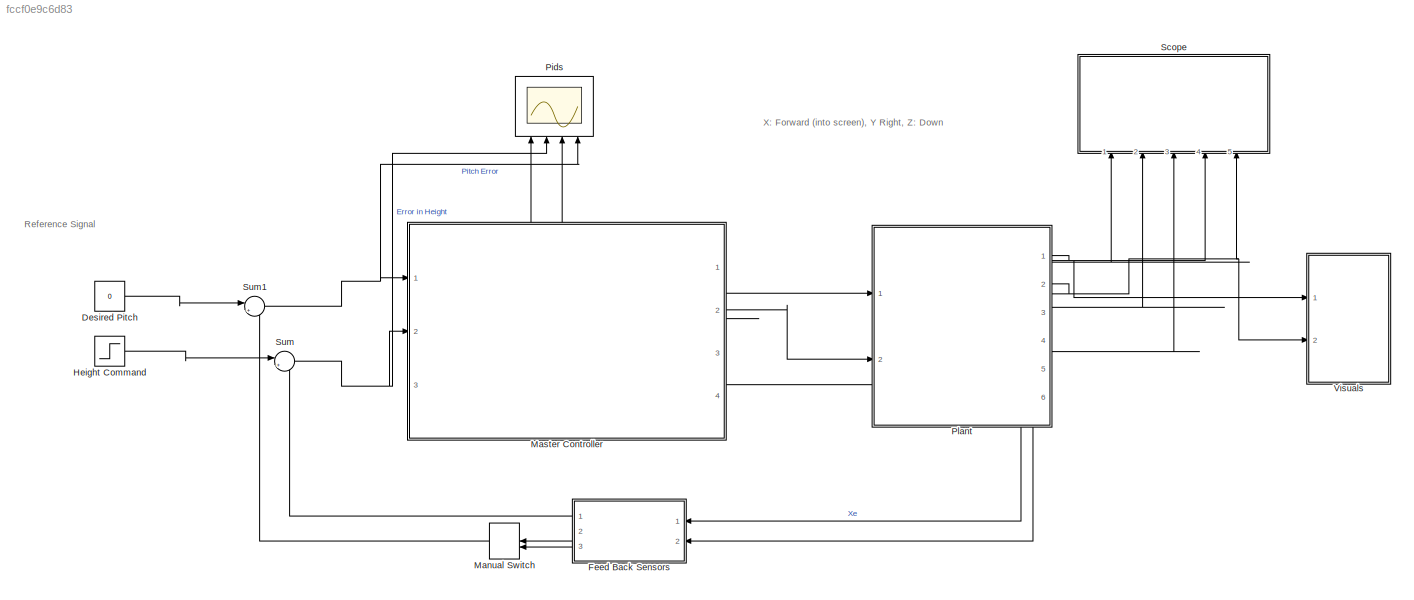
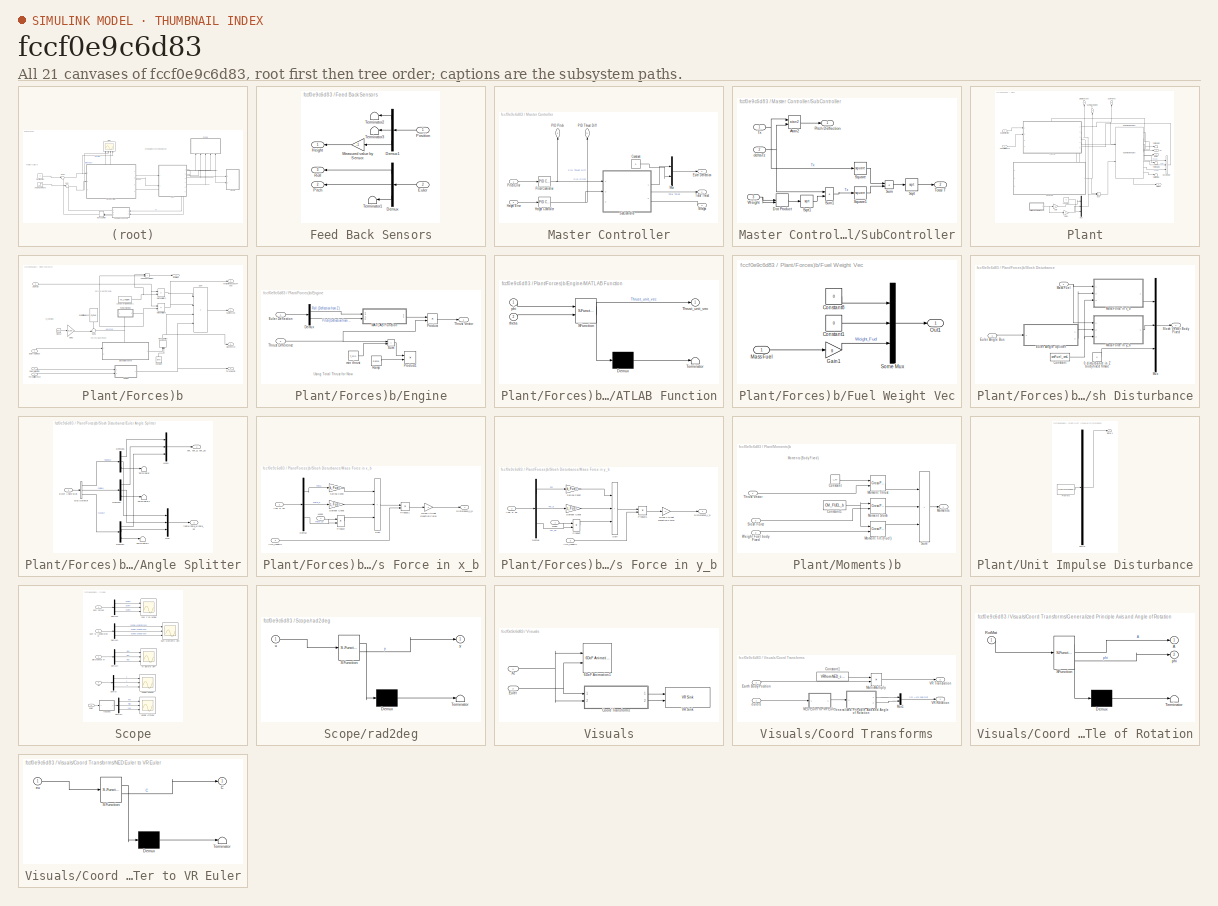
[diagram: thumbnail index - all 21 canvases of the model, root first then tree order]
MODEL slx_fccf0e9c6d83
KIND model
CONFIG AbsTol = auto
CONFIG EnableMultiTasking = off
CONFIG FixedStep = auto
CONFIG MaxStep = auto
CONFIG MinStep = auto
CONFIG RelTol = 1e-3
CONFIG SampleTimeConstraint = Unconstrained
CONFIG SolverName = VariableStepAuto
CONFIG StartTime = 0.0
CONFIG StopTime = 10
BLOCK [Constant] Desired Pitch
  Value = 0
BLOCK [SubSystem] Feed Back Sensors
  NameLocation = top
  Ports = [2, 3]
  RequestExecContextInheritance = off
BLOCK [Demux] Feed Back Sensors/Demux
  NameLocation = top
  Outputs = 3
  Ports = [1, 3]
BLOCK [Demux] Feed Back Sensors/Demux1
  NameLocation = top
  Outputs = 3
  Ports = [1, 3]
BLOCK [Inport] Feed Back Sensors/Euler
  NameLocation = top
  Port = 2
BLOCK [Outport] Feed Back Sensors/Height
  NameLocation = top
BLOCK [Gain] Feed Back Sensors/Measured value by Sensor.
  Gain = -1
  NameLocation = top
BLOCK [Outport] Feed Back Sensors/Pitch
  NameLocation = top
  Port = 2
BLOCK [Inport] Feed Back Sensors/Position
  NameLocation = top
BLOCK [Outport] Feed Back Sensors/Roll
  NameLocation = top
  Port = 3
BLOCK [Terminator] Feed Back Sensors/Terminator1
  NameLocation = top
BLOCK [Terminator] Feed Back Sensors/Terminator2
  NameLocation = top
BLOCK [Terminator] Feed Back Sensors/Terminator3
  NameLocation = top
BLOCK [Step] Height Command
  SampleTime = 0
BLOCK [ManualSwitch] Manual Switch
  CurrentSetting = 0
  NameLocation = top
BLOCK [SubSystem] Master Controller
  PortSchema = {"entries":[{"content":{"sides":[{"content":{"connectorIds":["In1","In2"]},"type":"ConnectorPlacement.EquallySpacedRectSide","uuid":"6b5f81e2-01db-4c59-bf08-4e3bf18bec3e"},{"content":{"connectorIds":["Out1","Out2","In3"],"side":"RIGHT"},"type":"ConnectorPlacement.EquallySpacedRectSide","uuid":"f97d49e1-5da4-4301-bd73-5a99c2855c55"},{"content":{"connectorIds":["Out3","Out4"],"side":"TOP"},"type":"C...<+272ch>
  Ports = [3, 4]
  RequestExecContextInheritance = off
BLOCK [Constant] Master Controller/Constant
  Value = 0
BLOCK [Outport] Master Controller/Euler Deflection
BLOCK [Reference] Master Controller/Height Controller  REF=slpidlib/PID Controller
  Ports = [1, 1]
  SourceBlock = slpidlib/PID Controller
  SourceProductBaseCode = SL
  SourceType = PID 1dof
BLOCK [Inport] Master Controller/Height Error
  Port = 2
BLOCK [Mux] Master Controller/Mux
  DisplayOption = bar
  Inputs = 2
  Ports = [2, 1]
BLOCK [Outport] Master Controller/PID Pitch
  NameLocation = right
  Port = 4
BLOCK [Outport] Master Controller/PID Thrust Diff
  NameLocation = right
  Port = 3
BLOCK [Reference] Master Controller/Pitch Controller  REF=slpidlib/PID Controller
  Ports = [1, 1]
  SourceBlock = slpidlib/PID Controller
  SourceProductBaseCode = SL
  SourceType = PID 1dof
BLOCK [Inport] Master Controller/Pitch Error
BLOCK [SubSystem] Master Controller/SubController
  PortSchema = {"entries":[{"content":{"sides":[{"content":{"connectorIds":["In1","In2"]},"type":"ConnectorPlacement.EquallySpacedRectSide","uuid":"09ce5825-295e-43a7-9644-a5328231df2c"},{"content":{"connectorIds":["Out1","Out2","In3"],"side":"RIGHT"},"type":"ConnectorPlacement.EquallySpacedRectSide","uuid":"578e798d-aacd-4cff-b78a-042079318f31"},{"content":{"connectorIds":[],"side":"TOP"},"type":"ConnectorPlace...<+259ch>
  Ports = [3, 2]
  RequestExecContextInheritance = off
BLOCK [Trigonometry] Master Controller/SubController/Atan2
  Operator = atan2
  Ports = [2, 1]
BLOCK [DotProduct] Master Controller/SubController/Dot Product
  OutDataTypeStr = Inherit: Inherit via internal rule
BLOCK [Outport] Master Controller/SubController/Pitch Deflection
BLOCK [Sqrt] Master Controller/SubController/Sqrt
BLOCK [Sqrt] Master Controller/SubController/Sqrt1
BLOCK [Math] Master Controller/SubController/Square
  Operator = square
  Ports = [1, 1]
BLOCK [Math] Master Controller/SubController/Square1
  Operator = square
  Ports = [1, 1]
BLOCK [Sum] Master Controller/SubController/Sum
  IconShape = rectangular
  Ports = [2, 1]
BLOCK [Sum] Master Controller/SubController/Sum1
  IconShape = rectangular
  Ports = [2, 1]
BLOCK [Outport] Master Controller/SubController/Total T
  Port = 2
BLOCK [Inport] Master Controller/SubController/Tx
BLOCK [Inport] Master Controller/SubController/Weight
  Port = 3
BLOCK [Inport] Master Controller/SubController/deltaTz
  Port = 2
BLOCK [Outport] Master Controller/Total Thrust
  Port = 2
BLOCK [Inport] Master Controller/Weight
  Port = 3
BLOCK [Scope] Pids
  Floating = off
  NameLocation = right
  NumInputPorts = 4
  Ports = [4]
  ScopeSpecificationString = Simulink.scopes.TimeScopeBlockCfg('CurrentConfiguration', extmgr.ConfigurationSet(extmgr.Configuration('Core','General UI',true),extmgr.Configuration('Core','Source UI',true),extmgr.Configuration('Sources','WiredSimulink',true,'DataLoggingVariableName','ScopeData1'),extmgr.Configuration('Visuals','Time Domain',true,'SerializedDisplays',{struct('MinYLimReal','-29.09365','MaxYLimReal','261.01041','Y...<+3563ch>
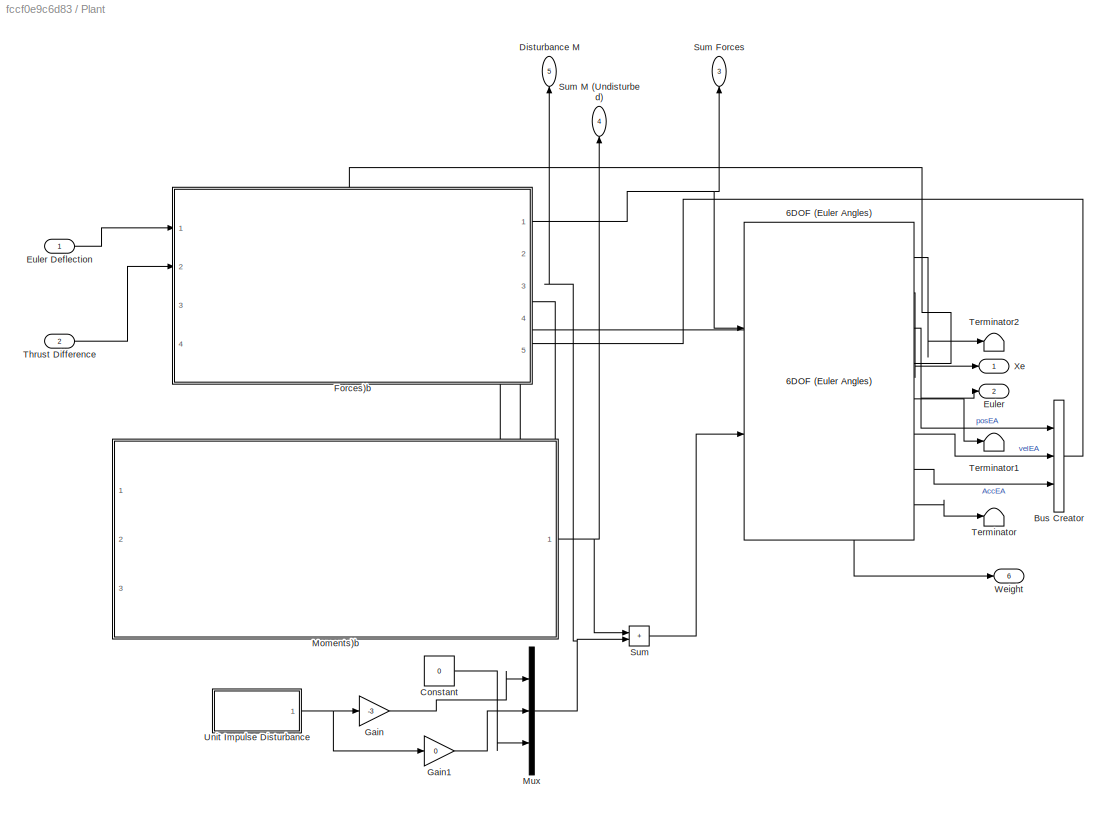
BLOCK [SubSystem] Plant
  PortSchema = {"entries":[{"content":{"sides":[{"content":{"connectorIds":["In1","In2","Out6"]},"type":"ConnectorPlacement.EquallySpacedRectSide","uuid":"a758654d-f9c5-4f69-af4d-6756fdff02ab"},{"content":{"connectorIds":["Out1","Out2"],"side":"RIGHT"},"type":"ConnectorPlacement.EquallySpacedRectSide","uuid":"3ca0fdf4-fd7f-4f85-961a-cf19d643cdba"},{"content":{"connectorIds":["Out3","Out4","Out5"],"side":"TOP"},"...<+280ch>
  Ports = [2, 6]
  RequestExecContextInheritance = off
BLOCK [Reference] Plant/6DOF (Euler Angles)  REF=shared6dof/6DOF (Euler Angles)
  Ports = [2, 8]
  SourceBlock = shared6dof/6DOF (Euler Angles)
  SourceProductBaseCode = AE,PW,DR,MT,UV,VE
  SourceType = 6DOF EoM (Body Axis)
BLOCK [BusCreator] Plant/Bus Creator
  DisplayOption = bar
  InheritFromInputs = on
  Inputs = 3
  Ports = [3, 1]
BLOCK [Constant] Plant/Constant
  Value = 0
BLOCK [Outport] Plant/Disturbance M
  NameLocation = right
  Port = 5
BLOCK [Outport] Plant/Euler
  Port = 2
BLOCK [Inport] Plant/Euler Deflection
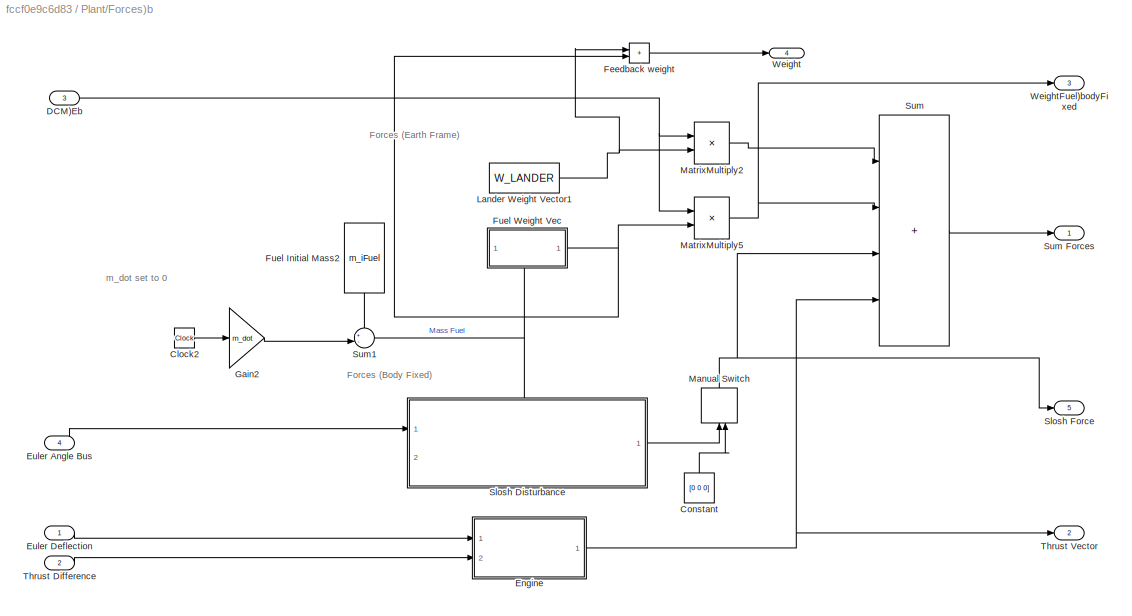
BLOCK [SubSystem] Plant/Forces)b
  PortSchema = {"entries":[{"content":{"sides":[{"content":{"connectorIds":["In1","In2"]},"type":"ConnectorPlacement.EquallySpacedRectSide","uuid":"f2cd2bb8-6e5d-4153-a512-e15a3f9d81c4"},{"content":{"connectorIds":["In4","Out1"],"side":"RIGHT"},"type":"ConnectorPlacement.EquallySpacedRectSide","uuid":"118a6529-12fa-490e-97a8-013bcc90e0c4"},{"content":{"connectorIds":["In3"],"side":"TOP"},"type":"ConnectorPlaceme...<+428ch>
  Ports = [4, 5]
  RequestExecContextInheritance = off
BLOCK [Clock] Plant/Forces)b/Clock2
BLOCK [Constant] Plant/Forces)b/Constant
  NameLocation = right
  Value = [0 0 0]
BLOCK [Inport] Plant/Forces)b/DCM)Eb
  Port = 3
BLOCK [SubSystem] Plant/Forces)b/Engine
  Ports = [2, 1]
  RequestExecContextInheritance = off
BLOCK [Demux] Plant/Forces)b/Engine/Demux
  Outputs = 2
  Ports = [1, 2]
BLOCK [Inport] Plant/Forces)b/Engine/Euler Deflection
BLOCK [SubSystem] Plant/Forces)b/Engine/MATLAB Function
  ErrorFcn = Stateflow.Translate.translate
  PermitHierarchicalResolution = ExplicitOnly
  Ports = [2, 1]
  RequestExecContextInheritance = off
  SFBlockType = MATLAB Function
  TreatAsAtomicUnit = on
BLOCK [Demux] Plant/Forces)b/Engine/MATLAB Function/ Demux 
  Outputs = 1
  Ports = [1, 1]
BLOCK [S-Function] Plant/Forces)b/Engine/MATLAB Function/ SFunction 
  EnableBusSupport = on
  FunctionName = sf_sfun
  PortCounts = [2 2]
  Ports = [2, 2]
  SFcnIsStateOwnerBlock = off
  SFunctionDeploymentMode = off
  Tag = Stateflow S-Function 1
BLOCK [Terminator] Plant/Forces)b/Engine/MATLAB Function/ Terminator 
BLOCK [Outport] Plant/Forces)b/Engine/MATLAB Function/Thrust_unit_vec
BLOCK [Inport] Plant/Forces)b/Engine/MATLAB Function/phi
BLOCK [Inport] Plant/Forces)b/Engine/MATLAB Function/theta
  Port = 2
BLOCK [Product] Plant/Forces)b/Engine/Product
  Ports = [2, 1]
BLOCK [Product] Plant/Forces)b/Engine/Product1
  Commented = on
  Ports = [2, 1]
BLOCK [Reference] Plant/Forces)b/Engine/Ramp  REF=simulink/Sources/Ramp
  Commented = on
  Ports = [0, 1]
  SourceBlock = simulink/Sources/Ramp
  SourceProductBaseCode = SL
  SourceType = Ramp
BLOCK [Sum] Plant/Forces)b/Engine/Sum
  Commented = on
  IconShape = rectangular
  Ports = [2, 1]
BLOCK [Inport] Plant/Forces)b/Engine/Thrust Difference
  Port = 2
BLOCK [Outport] Plant/Forces)b/Engine/Thrust Vector
BLOCK [Constant] Plant/Forces)b/Engine/min thrust
  Commented = on
  Value = T_min
BLOCK [Inport] Plant/Forces)b/Euler Angle Bus
  Port = 4
BLOCK [Inport] Plant/Forces)b/Euler Deflection
BLOCK [Sum] Plant/Forces)b/Feedback weight
  IconShape = rectangular
  Ports = [2, 1]
BLOCK [Constant] Plant/Forces)b/Fuel Initial Mass2
  NameLocation = left
  Value = m_iFuel
BLOCK [SubSystem] Plant/Forces)b/Fuel Weight Vec
  PortSchema = {"entries":[{"content":{"sides":[{"content":{"connectorIds":[]},"type":"ConnectorPlacement.EquallySpacedRectSide","uuid":"3ac8771b-a081-406d-94b3-c49ccf45ccde"},{"content":{"connectorIds":["Out1"],"side":"RIGHT"},"type":"ConnectorPlacement.EquallySpacedRectSide","uuid":"be409403-c355-43ab-922f-674d94fb1088"},{"content":{"connectorIds":[],"side":"TOP"},"type":"ConnectorPlacement.EquallySpacedRectSi...<+384ch>
  Ports = [1, 1]
  RequestExecContextInheritance = off
BLOCK [Constant] Plant/Forces)b/Fuel Weight Vec/Constant1
  Value = 0
BLOCK [Constant] Plant/Forces)b/Fuel Weight Vec/Constant8
  Value = 0
BLOCK [Gain] Plant/Forces)b/Fuel Weight Vec/Gain1
  Gain = g
BLOCK [Inport] Plant/Forces)b/Fuel Weight Vec/Mass Fuel
BLOCK [Outport] Plant/Forces)b/Fuel Weight Vec/Out1
BLOCK [Mux] Plant/Forces)b/Fuel Weight Vec/Some Mux
  DisplayOption = bar
  Inputs = 3
  Ports = [3, 1]
BLOCK [Gain] Plant/Forces)b/Gain2
  Gain = m_dot
BLOCK [Constant] Plant/Forces)b/Lander Weight Vector1
  Value = W_LANDER
BLOCK [ManualSwitch] Plant/Forces)b/Manual Switch
  CurrentSetting = 0
  NameLocation = right
BLOCK [Product] Plant/Forces)b/MatrixMultiply2
  Multiplication = Matrix(*)
  Ports = [2, 1]
BLOCK [Product] Plant/Forces)b/MatrixMultiply5
  Multiplication = Matrix(*)
  Ports = [2, 1]
BLOCK [SubSystem] Plant/Forces)b/Slosh Disturbance
  PortSchema = {"entries":[{"content":{"sides":[{"content":{"connectorIds":["In1"]},"type":"ConnectorPlacement.EquallySpacedRectSide","uuid":"57bc3e64-de08-407a-928b-1dcbce02ca7d"},{"content":{"connectorIds":["Out1"],"side":"RIGHT"},"type":"ConnectorPlacement.EquallySpacedRectSide","uuid":"aa88f6e7-8b22-4f67-9b59-e952a02f1ee1"},{"content":{"connectorIds":["In2"],"side":"TOP"},"type":"ConnectorPlacement.EquallySp...<+245ch>
  Ports = [2, 1]
  RequestExecContextInheritance = off
BLOCK [Constant] Plant/Forces)b/Slosh Disturbance/0 disturbance in Z body fixed frmae
  Value = 0
BLOCK [Constant] Plant/Forces)b/Slosh Disturbance/Constant
  Value = cmFuel_cmL
BLOCK [Inport] Plant/Forces)b/Slosh Disturbance/Euler Angle Bus
  NameLocation = top
BLOCK [SubSystem] Plant/Forces)b/Slosh Disturbance/Euler Angle Splitter
  Ports = [1, 2]
  RequestExecContextInheritance = off
BLOCK [BusSelector] Plant/Forces)b/Slosh Disturbance/Euler Angle Splitter/Bus Selector
  OutputSignals = posEA,velEA,AccEA
  Ports = [1, 3]
BLOCK [Demux] Plant/Forces)b/Slosh Disturbance/Euler Angle Splitter/Demux5
  Outputs = 3
  Ports = [1, 3]
BLOCK [Demux] Plant/Forces)b/Slosh Disturbance/Euler Angle Splitter/Demux6
  Outputs = 3
  Ports = [1, 3]
BLOCK [Demux] Plant/Forces)b/Slosh Disturbance/Euler Angle Splitter/Demux7
  Outputs = 3
  Ports = [1, 3]
BLOCK [Inport] Plant/Forces)b/Slosh Disturbance/Euler Angle Splitter/Euler Angle Bus
BLOCK [Mux] Plant/Forces)b/Slosh Disturbance/Euler Angle Splitter/Mux
  DisplayOption = bar
  Inputs = 3
  Ports = [3, 1]
BLOCK [Mux] Plant/Forces)b/Slosh Disturbance/Euler Angle Splitter/Mux1
  DisplayOption = bar
  Inputs = 3
  Ports = [3, 1]
BLOCK [Terminator] Plant/Forces)b/Slosh Disturbance/Euler Angle Splitter/Terminator
BLOCK [Terminator] Plant/Forces)b/Slosh Disturbance/Euler Angle Splitter/Terminator1
BLOCK [Terminator] Plant/Forces)b/Slosh Disturbance/Euler Angle Splitter/Terminator2
BLOCK [Outport] Plant/Forces)b/Slosh Disturbance/Euler Angle Splitter/phi, phi_d, phi_2d
BLOCK [Outport] Plant/Forces)b/Slosh Disturbance/Euler Angle Splitter/theta,theta_d,theta_2d
  Port = 2
BLOCK [SubSystem] Plant/Forces)b/Slosh Disturbance/Mass Force in x_b
  Ports = [3, 1]
  RequestExecContextInheritance = off
BLOCK [Inport] Plant/Forces)b/Slosh Disturbance/Mass Force in x_b/Ang, d, 2d
  Port = 2
BLOCK [Inport] Plant/Forces)b/Slosh Disturbance/Mass Force in x_b/Arm_length r
  Port = 3
BLOCK [Gain] Plant/Forces)b/Slosh Disturbance/Mass Force in x_b/Damper Const
  Gain = c_Fuel
BLOCK [Demux] Plant/Forces)b/Slosh Disturbance/Mass Force in x_b/Demux
  Outputs = 3
  Ports = [1, 3]
BLOCK [Outport] Plant/Forces)b/Slosh Disturbance/Mass Force in x_b/Disturbance_x_b
BLOCK [Inport] Plant/Forces)b/Slosh Disturbance/Mass Force in x_b/Mass
BLOCK [Gain] Plant/Forces)b/Slosh Disturbance/Mass Force in x_b/Minus 1 to get Reaction Force
  Gain = -1
BLOCK [Product] Plant/Forces)b/Slosh Disturbance/Mass Force in x_b/Product
  Ports = [2, 1]
BLOCK [Product] Plant/Forces)b/Slosh Disturbance/Mass Force in x_b/Product1
  Ports = [2, 1]
BLOCK [Gain] Plant/Forces)b/Slosh Disturbance/Mass Force in x_b/Spring Const
  Gain = k_Fuel
BLOCK [Sum] Plant/Forces)b/Slosh Disturbance/Mass Force in x_b/Sum
  IconShape = rectangular
  Inputs = +++
  Ports = [3, 1]
BLOCK [SubSystem] Plant/Forces)b/Slosh Disturbance/Mass Force in y_b
  Ports = [3, 1]
  RequestExecContextInheritance = off
BLOCK [Inport] Plant/Forces)b/Slosh Disturbance/Mass Force in y_b/Ang, d, 2d
  Port = 2
BLOCK [Inport] Plant/Forces)b/Slosh Disturbance/Mass Force in y_b/Arm_length r
  Port = 3
BLOCK [Gain] Plant/Forces)b/Slosh Disturbance/Mass Force in y_b/Damper Const
  Gain = c_Fuel
BLOCK [Demux] Plant/Forces)b/Slosh Disturbance/Mass Force in y_b/Demux
  Outputs = 3
  Ports = [1, 3]
BLOCK [Outport] Plant/Forces)b/Slosh Disturbance/Mass Force in y_b/Disturbance_y_b
BLOCK [Inport] Plant/Forces)b/Slosh Disturbance/Mass Force in y_b/Mass
BLOCK [Gain] Plant/Forces)b/Slosh Disturbance/Mass Force in y_b/Minus 1 to get Reaction Force
  Gain = -1
BLOCK [Product] Plant/Forces)b/Slosh Disturbance/Mass Force in y_b/Product
  Ports = [2, 1]
BLOCK [Product] Plant/Forces)b/Slosh Disturbance/Mass Force in y_b/Product1
  Ports = [2, 1]
BLOCK [Gain] Plant/Forces)b/Slosh Disturbance/Mass Force in y_b/Spring Const
  Gain = k_Fuel
BLOCK [Sum] Plant/Forces)b/Slosh Disturbance/Mass Force in y_b/Sum
  IconShape = rectangular
  Inputs = +++
  Ports = [3, 1]
BLOCK [Inport] Plant/Forces)b/Slosh Disturbance/Mass Fuel
  Port = 2
BLOCK [Mux] Plant/Forces)b/Slosh Disturbance/Mux
  DisplayOption = bar
  Inputs = 3
  Ports = [3, 1]
BLOCK [Outport] Plant/Forces)b/Slosh Disturbance/Slosh Vector Body Fixed
BLOCK [Outport] Plant/Forces)b/Slosh Force
  Port = 5
BLOCK [Sum] Plant/Forces)b/Sum
  IconShape = rectangular
  Inputs = ++++
  Ports = [4, 1]
BLOCK [Outport] Plant/Forces)b/Sum Forces
BLOCK [Sum] Plant/Forces)b/Sum1
  Inputs = +-|
  Ports = [2, 1]
BLOCK [Inport] Plant/Forces)b/Thrust Difference
  Port = 2
BLOCK [Outport] Plant/Forces)b/Thrust Vector
  Port = 2
BLOCK [Outport] Plant/Forces)b/Weight
  Port = 4
BLOCK [Outport] Plant/Forces)b/WeightFuel)bodyFixed
  Port = 3
BLOCK [Gain] Plant/Gain
  Gain = -3
BLOCK [Gain] Plant/Gain1
  Gain = 0
BLOCK [SubSystem] Plant/Moments)b
  PortSchema = {"entries":[{"content":{"sides":[{"content":{"connectorIds":[]},"type":"ConnectorPlacement.EquallySpacedRectSide","uuid":"57bc3e64-de08-407a-928b-1dcbce02ca7d"},{"content":{"connectorIds":["Out1"],"side":"RIGHT"},"type":"ConnectorPlacement.EquallySpacedRectSide","uuid":"aa88f6e7-8b22-4f67-9b59-e952a02f1ee1"},{"content":{"connectorIds":["In1","In2","In3"],"side":"TOP"},"type":"ConnectorPlacement.Eq...<+252ch>
  Ports = [3, 1]
  RequestExecContextInheritance = off
BLOCK [Constant] Plant/Moments)b/Constant
  Value = L_TV
BLOCK [Constant] Plant/Moments)b/Constant1
  Value = CM_FUEL_b
BLOCK [Reference] Plant/Moments)b/Moment Slosh  REF=matrix_library/Cross Product
  Ports = [2, 1]
  SourceBlock = matrix_library/Cross Product
  SourceProductBaseCode = SL
  SourceType = CrossProduct
BLOCK [Reference] Plant/Moments)b/Moment Thrust  REF=matrix_library/Cross Product
  Ports = [2, 1]
  SourceBlock = matrix_library/Cross Product
  SourceProductBaseCode = SL
  SourceType = CrossProduct
BLOCK [Reference] Plant/Moments)b/Moment Tilt (Fuel)  REF=matrix_library/Cross Product
  Ports = [2, 1]
  SourceBlock = matrix_library/Cross Product
  SourceProductBaseCode = SL
  SourceType = CrossProduct
BLOCK [Outport] Plant/Moments)b/Moments
BLOCK [Inport] Plant/Moments)b/Slosh Force
  Port = 3
BLOCK [Sum] Plant/Moments)b/Sum
  IconShape = rectangular
  Inputs = +++
  Ports = [3, 1]
BLOCK [Inport] Plant/Moments)b/Thrust Vector
BLOCK [Inport] Plant/Moments)b/Weight Fuel body Fixed
  Port = 2
BLOCK [Mux] Plant/Mux
  DisplayOption = bar
  Inputs = 3
  Ports = [3, 1]
BLOCK [Sum] Plant/Sum
  IconShape = rectangular
  Ports = [2, 1]
BLOCK [Outport] Plant/Sum Forces
  NameLocation = right
  Port = 3
BLOCK [Outport] Plant/Sum M (Undisturbed)
  NameLocation = right
  Port = 4
BLOCK [Terminator] Plant/Terminator
BLOCK [Terminator] Plant/Terminator1
BLOCK [Terminator] Plant/Terminator2
BLOCK [Inport] Plant/Thrust Difference
  Port = 2
BLOCK [SubSystem] Plant/Unit Impulse Disturbance
  ClipboardFcn = sigbuilder_block('clipboard');
  CloseFcn = sigbuilder_block('close');
  ContinueFcn = sigbuilder_block('continue');
  CopyFcn = sigbuilder_block('copy');
  DeleteFcn = sigbuilder_block('delete');
  LoadFcn = sigbuilder_block('load');
  MaskHideContents = on
  ModelCloseFcn = sigbuilder_block('modelClose');
  NameChangeFcn = sigbuilder_block('namechange');
  OpenFcn = sigbuilder_block('open',[204 256 550 400 ]);
  PauseFcn = sigbuilder_block('pause');
  Ports = [0, 1]
  PreSaveFcn = sigbuilder_block('preSave');
  RequestExecContextInheritance = off
  StartFcn = sigbuilder_block('start');
  StopFcn = sigbuilder_block('stop');
  Tag = STV Subsys
BLOCK [Demux] Plant/Unit Impulse Disturbance/Demux
  DisplayOption = none
  Outputs = 1
  Ports = [1, 1]
  Tag = STV Demux
BLOCK [FromWorkspace] Plant/Unit Impulse Disturbance/FromWs
  Tag = STV FromWs
  VariableName = tuvar
BLOCK [Outport] Plant/Unit Impulse Disturbance/Signal 1
  Tag = STV Outport
BLOCK [Outport] Plant/Weight
  Port = 6
BLOCK [Outport] Plant/Xe
BLOCK [SubSystem] Scope
  NameLocation = right
  Ports = [5]
  RequestExecContextInheritance = off
BLOCK [Demux] Scope/Demux
  Outputs = 3
  Ports = [1, 3]
BLOCK [Demux] Scope/Demux1
  Outputs = 3
  Ports = [1, 3]
BLOCK [Demux] Scope/Demux2
  Outputs = 3
  Ports = [1, 3]
BLOCK [Demux] Scope/Demux3
  Outputs = 3
  Ports = [1, 3]
BLOCK [Demux] Scope/Demux4
  Outputs = 3
  Ports = [1, 3]
BLOCK [Inport] Scope/Disturbance M
  Port = 3
BLOCK [Inport] Scope/Euler
  Port = 5
BLOCK [Scope] Scope/M disturb (BF)
  Floating = off
  NumInputPorts = 3
  Ports = [3]
  ScopeSpecificationString = Simulink.scopes.TimeScopeBlockCfg('CurrentConfiguration', extmgr.ConfigurationSet(extmgr.Configuration('Core','General UI',true),extmgr.Configuration('Core','Source UI',true),extmgr.Configuration('Sources','WiredSimulink',true,'DataLoggingVariableName','ScopeData2'),extmgr.Configuration('Visuals','Time Domain',true,'SerializedDisplays',{struct('MinYLimReal','-3.375','MaxYLimReal','0.375','YLabelRe...<+2877ch>
BLOCK [Scope] Scope/Sum F on Vehicle
  Floating = off
  NumInputPorts = 3
  Ports = [3]
  ScopeSpecificationString = Simulink.scopes.TimeScopeBlockCfg('CurrentConfiguration', extmgr.ConfigurationSet(extmgr.Configuration('Core','General UI',true),extmgr.Configuration('Core','Source UI',true),extmgr.Configuration('Sources','WiredSimulink',true,'DataLoggingVariableName','ScopeData1'),extmgr.Configuration('Visuals','Time Domain',true,'SerializedDisplays',{struct('MinYLimReal','-1.00000','MaxYLimReal','1.00000','YLab...<+2795ch>
BLOCK [Inport] Scope/Sum Forces
BLOCK [Inport] Scope/Sum M (Undisturbed)
  Port = 2
BLOCK [Scope] Scope/Sum Moments (BF)
  Floating = off
  NumInputPorts = 3
  Ports = [3]
  ScopeSpecificationString = Simulink.scopes.TimeScopeBlockCfg('CurrentConfiguration', extmgr.ConfigurationSet(extmgr.Configuration('Core','General UI',true),extmgr.Configuration('Core','Source UI',true),extmgr.Configuration('Sources','WiredSimulink',true,'DataLoggingVariableName','ScopeData1'),extmgr.Configuration('Visuals','Time Domain',true,'SerializedDisplays',{struct('MinYLimReal','-130.29547','MaxYLimReal','156.24075','...<+2808ch>
BLOCK [Scope] Scope/Vehicle Attitude
  Floating = off
  NumInputPorts = 3
  Ports = [3]
  ScopeSpecificationString = Simulink.scopes.TimeScopeBlockCfg('CurrentConfiguration', extmgr.ConfigurationSet(extmgr.Configuration('Core','General UI',true),extmgr.Configuration('Core','Source UI',true),extmgr.Configuration('Sources','WiredSimulink',true,'DataLoggingVariableName','ScopeData2'),extmgr.Configuration('Visuals','Time Domain',true,'SerializedDisplays',{struct('MinYLimReal','-3.94618','MaxYLimReal','3.83351','YLab...<+2779ch>
BLOCK [Scope] Scope/Vehicle Position
  Floating = off
  NumInputPorts = 3
  Ports = [3]
  ScopeSpecificationString = Simulink.scopes.TimeScopeBlockCfg('CurrentConfiguration', extmgr.ConfigurationSet(extmgr.Configuration('Core','General UI',true),extmgr.Configuration('Core','Source UI',true),extmgr.Configuration('Sources','WiredSimulink',true,'DataLoggingVariableName','ScopeData1'),extmgr.Configuration('Visuals','Time Domain',true,'SerializedDisplays',{struct('MinYLimReal','-1.00000','MaxYLimReal','1.00000','YLab...<+2745ch>
BLOCK [Inport] Scope/Xe
  Port = 4
BLOCK [SubSystem] Scope/rad2deg
  ErrorFcn = Stateflow.Translate.translate
  PermitHierarchicalResolution = ExplicitOnly
  Ports = [1, 1]
  RequestExecContextInheritance = off
  SFBlockType = MATLAB Function
  TreatAsAtomicUnit = on
BLOCK [Demux] Scope/rad2deg/ Demux 
  Outputs = 1
  Ports = [1, 1]
BLOCK [S-Function] Scope/rad2deg/ SFunction 
  EnableBusSupport = on
  FunctionName = sf_sfun
  PortCounts = [1 2]
  Ports = [1, 2]
  SFcnIsStateOwnerBlock = off
  SFunctionDeploymentMode = off
  Tag = Stateflow S-Function 4
BLOCK [Terminator] Scope/rad2deg/ Terminator 
BLOCK [Inport] Scope/rad2deg/u
BLOCK [Outport] Scope/rad2deg/y
BLOCK [Sum] Sum
  Inputs = |+-
  Ports = [2, 1]
BLOCK [Sum] Sum1
  Inputs = |+-
  Ports = [2, 1]
BLOCK [SubSystem] Visuals
  Ports = [2]
  RequestExecContextInheritance = off
BLOCK [Reference] Visuals/6DoF Animation1  REF=aerolibanim/6DoF Animation
  Ports = [2]
  SourceBlock = aerolibanim/6DoF Animation
  SourceProductBaseCode = AE
  SourceType = 6DoF_Animation
BLOCK [SubSystem] Visuals/Coord Transforms
  Ports = [2, 2]
  RequestExecContextInheritance = off
BLOCK [Constant] Visuals/Coord Transforms/Constant1
  Value = VRfromNED_cordT
BLOCK [Inport] Visuals/Coord Transforms/Earth Body Position
  Port = 2
BLOCK [SubSystem] Visuals/Coord Transforms/Generalized Principle Axis and Angle of Rotation
  ErrorFcn = Stateflow.Translate.translate
  PermitHierarchicalResolution = ExplicitOnly
  Ports = [1, 2]
  RequestExecContextInheritance = off
  SFBlockType = MATLAB Function
  TreatAsAtomicUnit = on
BLOCK [Demux] Visuals/Coord Transforms/Generalized Principle Axis and Angle of Rotation/ Demux 
  Outputs = 1
  Ports = [1, 1]
BLOCK [S-Function] Visuals/Coord Transforms/Generalized Principle Axis and Angle of Rotation/ SFunction 
  EnableBusSupport = on
  FunctionName = sf_sfun
  PortCounts = [1 3]
  Ports = [1, 3]
  SFcnIsStateOwnerBlock = off
  SFunctionDeploymentMode = off
  Tag = Stateflow S-Function 2
BLOCK [Terminator] Visuals/Coord Transforms/Generalized Principle Axis and Angle of Rotation/ Terminator 
BLOCK [Outport] Visuals/Coord Transforms/Generalized Principle Axis and Angle of Rotation/A
BLOCK [Inport] Visuals/Coord Transforms/Generalized Principle Axis and Angle of Rotation/RotMat
BLOCK [Outport] Visuals/Coord Transforms/Generalized Principle Axis and Angle of Rotation/phi
  Port = 2
BLOCK [Product] Visuals/Coord Transforms/MatrixMultiply
  Multiplication = Matrix(*)
  Ports = [2, 1]
BLOCK [Mux] Visuals/Coord Transforms/Mux1
  DisplayOption = bar
  Inputs = 2
  Ports = [2, 1]
BLOCK [SubSystem] Visuals/Coord Transforms/NED Euler to VR Euler
  ErrorFcn = Stateflow.Translate.translate
  PermitHierarchicalResolution = ExplicitOnly
  Ports = [1, 1]
  RequestExecContextInheritance = off
  SFBlockType = MATLAB Function
  TreatAsAtomicUnit = on
BLOCK [Demux] Visuals/Coord Transforms/NED Euler to VR Euler/ Demux 
  Outputs = 1
  Ports = [1, 1]
BLOCK [S-Function] Visuals/Coord Transforms/NED Euler to VR Euler/ SFunction 
  EnableBusSupport = on
  FunctionName = sf_sfun
  PortCounts = [1 2]
  Ports = [1, 2]
  SFcnIsStateOwnerBlock = off
  SFunctionDeploymentMode = off
  Tag = Stateflow S-Function 3
BLOCK [Terminator] Visuals/Coord Transforms/NED Euler to VR Euler/ Terminator 
BLOCK [Outport] Visuals/Coord Transforms/NED Euler to VR Euler/C
BLOCK [Inport] Visuals/Coord Transforms/NED Euler to VR Euler/eu
BLOCK [Outport] Visuals/Coord Transforms/VR Rotation
BLOCK [Outport] Visuals/Coord Transforms/VR Translation
  Port = 2
BLOCK [Inport] Visuals/Coord Transforms/eulers
BLOCK [Inport] Visuals/Euler
  Port = 2
BLOCK [Reference] Visuals/VR Sink  REF=vrlib/VR Sink
  InstantiateOnLoad = on
  Ports = [2]
  SourceBlock = vrlib/VR Sink
  SourceProductBaseCode = SL
  SourceType = Virtual Reality Sink
BLOCK [Inport] Visuals/Xe
ANNOTATION (root): Reference Signal
ANNOTATION (root): X: Forward (into screen), Y Right, Z: Down
ANNOTATION Plant/Forces)b: Forces (Body Fixed)
ANNOTATION Plant/Forces)b: Forces (Earth Frame)
ANNOTATION Plant/Forces)b: m_dot set to 0
ANNOTATION Plant/Forces)b/Engine: Using Total Thrust for Now
ANNOTATION Plant/Moments)b: Moments (Body Fixed)
LINE Desired Pitch:1 -> Sum1:1
LINE Feed Back Sensors/Demux1:1 -> Feed Back Sensors/Terminator2:1
LINE Feed Back Sensors/Demux1:2 -> Feed Back Sensors/Terminator3:1
LINE Feed Back Sensors/Demux1:3 -> Feed Back Sensors/Measured value by Sensor.:1
LINE Feed Back Sensors/Demux:1 -> Feed Back Sensors/Roll:1
LINE Feed Back Sensors/Demux:2 -> Feed Back Sensors/Pitch:1
LINE Feed Back Sensors/Demux:3 -> Feed Back Sensors/Terminator1:1
LINE Feed Back Sensors/Euler:1 -> Feed Back Sensors/Demux:1
LINE Feed Back Sensors/Measured value by Sensor.:1 -> Feed Back Sensors/Height:1
LINE Feed Back Sensors/Position:1 -> Feed Back Sensors/Demux1:1
LINE Feed Back Sensors:1 -> Sum:2
LINE Feed Back Sensors:2 -> Manual Switch:1
LINE Feed Back Sensors:3 -> Manual Switch:2
LINE Height Command:1 -> Sum:1
LINE Manual Switch:1 -> Sum1:2
LINE Master Controller/Constant:1 -> Master Controller/Mux:2
NET Master Controller/Height Controller:1 -> Master Controller/PID Thrust Diff:1, Master Controller/SubController:2
LINE Master Controller/Height Error:1 -> Master Controller/Height Controller:1
LINE Master Controller/Mux:1 -> Master Controller/Euler Deflection:1
NET Master Controller/Pitch Controller:1 -> Master Controller/PID Pitch:1, Master Controller/SubController:1
LINE Master Controller/Pitch Error:1 -> Master Controller/Pitch Controller:1
LINE Master Controller/SubController/Atan2:1 -> Master Controller/SubController/Pitch Deflection:1
LINE Master Controller/SubController/Dot Product:1 -> Master Controller/SubController/Sqrt1:1
LINE Master Controller/SubController/Sqrt1:1 -> Master Controller/SubController/Sum1:2
LINE Master Controller/SubController/Sqrt:1 -> Master Controller/SubController/Total T:1
LINE Master Controller/SubController/Square1:1 -> Master Controller/SubController/Sum:2
LINE Master Controller/SubController/Square:1 -> Master Controller/SubController/Sum:1
LINE Master Controller/SubController/Sum1:1 -> Master Controller/SubController/Square1:1
LINE Master Controller/SubController/Sum:1 -> Master Controller/SubController/Sqrt:1
NET Master Controller/SubController/Tx:1 -> Master Controller/SubController/Atan2:1, Master Controller/SubController/Square:1
NET Master Controller/SubController/Weight:1 -> Master Controller/SubController/Dot Product:1, Master Controller/SubController/Dot Product:2
NET Master Controller/SubController/deltaTz:1 -> Master Controller/SubController/Atan2:2, Master Controller/SubController/Sum1:1
LINE Master Controller/SubController:1 -> Master Controller/Mux:1
LINE Master Controller/SubController:2 -> Master Controller/Total Thrust:1
LINE Master Controller/Weight:1 -> Master Controller/SubController:3
LINE Master Controller:1 -> Plant:1
LINE Master Controller:2 -> Plant:2
LINE Master Controller:3 -> Pids:1
LINE Master Controller:4 -> Pids:3
LINE Plant/6DOF (Euler Angles):1 -> Plant/Terminator2:1
LINE Plant/6DOF (Euler Angles):2 -> Plant/Xe:1
NET Plant/6DOF (Euler Angles):3 -> Plant/Bus Creator:1, Plant/Euler:1
LINE Plant/6DOF (Euler Angles):4 -> Plant/Forces)b:3
LINE Plant/6DOF (Euler Angles):5 -> Plant/Terminator1:1
LINE Plant/6DOF (Euler Angles):6 -> Plant/Bus Creator:2
LINE Plant/6DOF (Euler Angles):7 -> Plant/Bus Creator:3
LINE Plant/6DOF (Euler Angles):8 -> Plant/Terminator:1
LINE Plant/Bus Creator:1 -> Plant/Forces)b:4
LINE Plant/Constant:1 -> Plant/Mux:3
LINE Plant/Euler Deflection:1 -> Plant/Forces)b:1
LINE Plant/Forces)b/Clock2:1 -> Plant/Forces)b/Gain2:1
LINE Plant/Forces)b/Constant:1 -> Plant/Forces)b/Manual Switch:2
NET Plant/Forces)b/DCM)Eb:1 -> Plant/Forces)b/MatrixMultiply2:1, Plant/Forces)b/MatrixMultiply5:1
LINE Plant/Forces)b/Engine/Demux:1 -> Plant/Forces)b/Engine/MATLAB Function:1
LINE Plant/Forces)b/Engine/Demux:2 -> Plant/Forces)b/Engine/MATLAB Function:2
LINE Plant/Forces)b/Engine/Euler Deflection:1 -> Plant/Forces)b/Engine/Demux:1
LINE Plant/Forces)b/Engine/MATLAB Function:1 -> Plant/Forces)b/Engine/Product:1
LINE Plant/Forces)b/Engine/Product:1 -> Plant/Forces)b/Engine/Thrust Vector:1
LINE Plant/Forces)b/Engine/Ramp:1 -> Plant/Forces)b/Engine/Product1:2
LINE Plant/Forces)b/Engine/Sum:1 -> Plant/Forces)b/Engine/Product1:1
NET Plant/Forces)b/Engine/Thrust Difference:1 -> Plant/Forces)b/Engine/Product:2, Plant/Forces)b/Engine/Sum:1
LINE Plant/Forces)b/Engine/min thrust:1 -> Plant/Forces)b/Engine/Sum:2
NET Plant/Forces)b/Engine:1 -> Plant/Forces)b/Sum:4, Plant/Forces)b/Thrust Vector:1
LINE Plant/Forces)b/Euler Angle Bus:1 -> Plant/Forces)b/Slosh Disturbance:1
LINE Plant/Forces)b/Euler Deflection:1 -> Plant/Forces)b/Engine:1
LINE Plant/Forces)b/Feedback weight:1 -> Plant/Forces)b/Weight:1
LINE Plant/Forces)b/Fuel Initial Mass2:1 -> Plant/Forces)b/Sum1:1
LINE Plant/Forces)b/Fuel Weight Vec/Constant1:1 -> Plant/Forces)b/Fuel Weight Vec/Some Mux:2
LINE Plant/Forces)b/Fuel Weight Vec/Constant8:1 -> Plant/Forces)b/Fuel Weight Vec/Some Mux:1
LINE Plant/Forces)b/Fuel Weight Vec/Gain1:1 -> Plant/Forces)b/Fuel Weight Vec/Some Mux:3
LINE Plant/Forces)b/Fuel Weight Vec/Mass Fuel:1 -> Plant/Forces)b/Fuel Weight Vec/Gain1:1
LINE Plant/Forces)b/Fuel Weight Vec/Some Mux:1 -> Plant/Forces)b/Fuel Weight Vec/Out1:1
NET Plant/Forces)b/Fuel Weight Vec:1 -> Plant/Forces)b/Feedback weight:2, Plant/Forces)b/MatrixMultiply5:2
LINE Plant/Forces)b/Gain2:1 -> Plant/Forces)b/Sum1:2
NET Plant/Forces)b/Lander Weight Vector1:1 -> Plant/Forces)b/Feedback weight:1, Plant/Forces)b/MatrixMultiply2:2
NET Plant/Forces)b/Manual Switch:1 -> Plant/Forces)b/Slosh Force:1, Plant/Forces)b/Sum:3
LINE Plant/Forces)b/MatrixMultiply2:1 -> Plant/Forces)b/Sum:1
NET Plant/Forces)b/MatrixMultiply5:1 -> Plant/Forces)b/Sum:2, Plant/Forces)b/WeightFuel)bodyFixed:1
LINE Plant/Forces)b/Slosh Disturbance/0 disturbance in Z body fixed frmae:1 -> Plant/Forces)b/Slosh Disturbance/Mux:3
NET Plant/Forces)b/Slosh Disturbance/Constant:1 -> Plant/Forces)b/Slosh Disturbance/Mass Force in x_b:3, Plant/Forces)b/Slosh Disturbance/Mass Force in y_b:3
LINE Plant/Forces)b/Slosh Disturbance/Euler Angle Bus:1 -> Plant/Forces)b/Slosh Disturbance/Euler Angle Splitter:1
LINE Plant/Forces)b/Slosh Disturbance/Euler Angle Splitter/Bus Selector:1 -> Plant/Forces)b/Slosh Disturbance/Euler Angle Splitter/Demux5:1
LINE Plant/Forces)b/Slosh Disturbance/Euler Angle Splitter/Bus Selector:2 -> Plant/Forces)b/Slosh Disturbance/Euler Angle Splitter/Demux6:1
LINE Plant/Forces)b/Slosh Disturbance/Euler Angle Splitter/Bus Selector:3 -> Plant/Forces)b/Slosh Disturbance/Euler Angle Splitter/Demux7:1
LINE Plant/Forces)b/Slosh Disturbance/Euler Angle Splitter/Demux5:1 -> Plant/Forces)b/Slosh Disturbance/Euler Angle Splitter/Mux1:1
LINE Plant/Forces)b/Slosh Disturbance/Euler Angle Splitter/Demux5:2 -> Plant/Forces)b/Slosh Disturbance/Euler Angle Splitter/Mux:1
LINE Plant/Forces)b/Slosh Disturbance/Euler Angle Splitter/Demux5:3 -> Plant/Forces)b/Slosh Disturbance/Euler Angle Splitter/Terminator:1
LINE Plant/Forces)b/Slosh Disturbance/Euler Angle Splitter/Demux6:1 -> Plant/Forces)b/Slosh Disturbance/Euler Angle Splitter/Mux1:2
LINE Plant/Forces)b/Slosh Disturbance/Euler Angle Splitter/Demux6:2 -> Plant/Forces)b/Slosh Disturbance/Euler Angle Splitter/Mux:2
LINE Plant/Forces)b/Slosh Disturbance/Euler Angle Splitter/Demux6:3 -> Plant/Forces)b/Slosh Disturbance/Euler Angle Splitter/Terminator1:1
LINE Plant/Forces)b/Slosh Disturbance/Euler Angle Splitter/Demux7:1 -> Plant/Forces)b/Slosh Disturbance/Euler Angle Splitter/Mux1:3
LINE Plant/Forces)b/Slosh Disturbance/Euler Angle Splitter/Demux7:2 -> Plant/Forces)b/Slosh Disturbance/Euler Angle Splitter/Mux:3
LINE Plant/Forces)b/Slosh Disturbance/Euler Angle Splitter/Demux7:3 -> Plant/Forces)b/Slosh Disturbance/Euler Angle Splitter/Terminator2:1
LINE Plant/Forces)b/Slosh Disturbance/Euler Angle Splitter/Euler Angle Bus:1 -> Plant/Forces)b/Slosh Disturbance/Euler Angle Splitter/Bus Selector:1
LINE Plant/Forces)b/Slosh Disturbance/Euler Angle Splitter/Mux1:1 -> Plant/Forces)b/Slosh Disturbance/Euler Angle Splitter/phi, phi_d, phi_2d:1
LINE Plant/Forces)b/Slosh Disturbance/Euler Angle Splitter/Mux:1 -> Plant/Forces)b/Slosh Disturbance/Euler Angle Splitter/theta,theta_d,theta_2d:1
LINE Plant/Forces)b/Slosh Disturbance/Euler Angle Splitter:1 -> Plant/Forces)b/Slosh Disturbance/Mass Force in y_b:2
LINE Plant/Forces)b/Slosh Disturbance/Euler Angle Splitter:2 -> Plant/Forces)b/Slosh Disturbance/Mass Force in x_b:2
LINE Plant/Forces)b/Slosh Disturbance/Mass Force in x_b/Ang, d, 2d:1 -> Plant/Forces)b/Slosh Disturbance/Mass Force in x_b/Demux:1
LINE Plant/Forces)b/Slosh Disturbance/Mass Force in x_b/Arm_length r:1 -> Plant/Forces)b/Slosh Disturbance/Mass Force in x_b/Product1:2
LINE Plant/Forces)b/Slosh Disturbance/Mass Force in x_b/Damper Const:1 -> Plant/Forces)b/Slosh Disturbance/Mass Force in x_b/Sum:2
LINE Plant/Forces)b/Slosh Disturbance/Mass Force in x_b/Demux:1 -> Plant/Forces)b/Slosh Disturbance/Mass Force in x_b/Spring Const:1
LINE Plant/Forces)b/Slosh Disturbance/Mass Force in x_b/Demux:2 -> Plant/Forces)b/Slosh Disturbance/Mass Force in x_b/Damper Const:1
LINE Plant/Forces)b/Slosh Disturbance/Mass Force in x_b/Demux:3 -> Plant/Forces)b/Slosh Disturbance/Mass Force in x_b/Product:2
LINE Plant/Forces)b/Slosh Disturbance/Mass Force in x_b/Mass:1 -> Plant/Forces)b/Slosh Disturbance/Mass Force in x_b/Product:1
LINE Plant/Forces)b/Slosh Disturbance/Mass Force in x_b/Minus 1 to get Reaction Force:1 -> Plant/Forces)b/Slosh Disturbance/Mass Force in x_b/Disturbance_x_b:1
LINE Plant/Forces)b/Slosh Disturbance/Mass Force in x_b/Product1:1 -> Plant/Forces)b/Slosh Disturbance/Mass Force in x_b/Minus 1 to get Reaction Force:1
LINE Plant/Forces)b/Slosh Disturbance/Mass Force in x_b/Product:1 -> Plant/Forces)b/Slosh Disturbance/Mass Force in x_b/Sum:3
LINE Plant/Forces)b/Slosh Disturbance/Mass Force in x_b/Spring Const:1 -> Plant/Forces)b/Slosh Disturbance/Mass Force in x_b/Sum:1
LINE Plant/Forces)b/Slosh Disturbance/Mass Force in x_b/Sum:1 -> Plant/Forces)b/Slosh Disturbance/Mass Force in x_b/Product1:1
LINE Plant/Forces)b/Slosh Disturbance/Mass Force in x_b:1 -> Plant/Forces)b/Slosh Disturbance/Mux:1
LINE Plant/Forces)b/Slosh Disturbance/Mass Force in y_b/Ang, d, 2d:1 -> Plant/Forces)b/Slosh Disturbance/Mass Force in y_b/Demux:1
LINE Plant/Forces)b/Slosh Disturbance/Mass Force in y_b/Arm_length r:1 -> Plant/Forces)b/Slosh Disturbance/Mass Force in y_b/Product1:2
LINE Plant/Forces)b/Slosh Disturbance/Mass Force in y_b/Damper Const:1 -> Plant/Forces)b/Slosh Disturbance/Mass Force in y_b/Sum:2
LINE Plant/Forces)b/Slosh Disturbance/Mass Force in y_b/Demux:1 -> Plant/Forces)b/Slosh Disturbance/Mass Force in y_b/Spring Const:1
LINE Plant/Forces)b/Slosh Disturbance/Mass Force in y_b/Demux:2 -> Plant/Forces)b/Slosh Disturbance/Mass Force in y_b/Damper Const:1
LINE Plant/Forces)b/Slosh Disturbance/Mass Force in y_b/Demux:3 -> Plant/Forces)b/Slosh Disturbance/Mass Force in y_b/Product:2
LINE Plant/Forces)b/Slosh Disturbance/Mass Force in y_b/Mass:1 -> Plant/Forces)b/Slosh Disturbance/Mass Force in y_b/Product:1
LINE Plant/Forces)b/Slosh Disturbance/Mass Force in y_b/Minus 1 to get Reaction Force:1 -> Plant/Forces)b/Slosh Disturbance/Mass Force in y_b/Disturbance_y_b:1
LINE Plant/Forces)b/Slosh Disturbance/Mass Force in y_b/Product1:1 -> Plant/Forces)b/Slosh Disturbance/Mass Force in y_b/Minus 1 to get Reaction Force:1
LINE Plant/Forces)b/Slosh Disturbance/Mass Force in y_b/Product:1 -> Plant/Forces)b/Slosh Disturbance/Mass Force in y_b/Sum:3
LINE Plant/Forces)b/Slosh Disturbance/Mass Force in y_b/Spring Const:1 -> Plant/Forces)b/Slosh Disturbance/Mass Force in y_b/Sum:1
LINE Plant/Forces)b/Slosh Disturbance/Mass Force in y_b/Sum:1 -> Plant/Forces)b/Slosh Disturbance/Mass Force in y_b/Product1:1
LINE Plant/Forces)b/Slosh Disturbance/Mass Force in y_b:1 -> Plant/Forces)b/Slosh Disturbance/Mux:2
NET Plant/Forces)b/Slosh Disturbance/Mass Fuel:1 -> Plant/Forces)b/Slosh Disturbance/Mass Force in x_b:1, Plant/Forces)b/Slosh Disturbance/Mass Force in y_b:1
LINE Plant/Forces)b/Slosh Disturbance/Mux:1 -> Plant/Forces)b/Slosh Disturbance/Slosh Vector Body Fixed:1
LINE Plant/Forces)b/Slosh Disturbance:1 -> Plant/Forces)b/Manual Switch:1
NET Plant/Forces)b/Sum1:1 -> Plant/Forces)b/Fuel Weight Vec:1, Plant/Forces)b/Slosh Disturbance:2
LINE Plant/Forces)b/Sum:1 -> Plant/Forces)b/Sum Forces:1
LINE Plant/Forces)b/Thrust Difference:1 -> Plant/Forces)b/Engine:2
NET Plant/Forces)b:1 -> Plant/6DOF (Euler Angles):1, Plant/Sum Forces:1
LINE Plant/Forces)b:2 -> Plant/Moments)b:1
LINE Plant/Forces)b:3 -> Plant/Moments)b:2
LINE Plant/Forces)b:4 -> Plant/Weight:1
LINE Plant/Forces)b:5 -> Plant/Moments)b:3
LINE Plant/Gain1:1 -> Plant/Mux:2
LINE Plant/Gain:1 -> Plant/Mux:1
NET Plant/Moments)b/Constant1:1 -> Plant/Moments)b/Moment Slosh:1, Plant/Moments)b/Moment Tilt (Fuel):1
LINE Plant/Moments)b/Constant:1 -> Plant/Moments)b/Moment Thrust:1
LINE Plant/Moments)b/Moment Slosh:1 -> Plant/Moments)b/Sum:2
LINE Plant/Moments)b/Moment Thrust:1 -> Plant/Moments)b/Sum:1
LINE Plant/Moments)b/Moment Tilt (Fuel):1 -> Plant/Moments)b/Sum:3
LINE Plant/Moments)b/Slosh Force:1 -> Plant/Moments)b/Moment Slosh:2
LINE Plant/Moments)b/Sum:1 -> Plant/Moments)b/Moments:1
LINE Plant/Moments)b/Thrust Vector:1 -> Plant/Moments)b/Moment Thrust:2
LINE Plant/Moments)b/Weight Fuel body Fixed:1 -> Plant/Moments)b/Moment Tilt (Fuel):2
NET Plant/Moments)b:1 -> Plant/Sum M (Undisturbed):1, Plant/Sum:1
NET Plant/Mux:1 -> Plant/Disturbance M:1, Plant/Sum:2
LINE Plant/Sum:1 -> Plant/6DOF (Euler Angles):2
LINE Plant/Thrust Difference:1 -> Plant/Forces)b:2
NET Plant/Unit Impulse Disturbance:1 -> Plant/Gain1:1, Plant/Gain:1
NET Plant:1 -> Feed Back Sensors:1, Scope:4, Visuals:1
NET Plant:2 -> Feed Back Sensors:2, Scope:5, Visuals:2
LINE Plant:3 -> Scope:1
LINE Plant:4 -> Scope:2
LINE Plant:5 -> Scope:3
LINE Plant:6 -> Master Controller:3
LINE Scope/Demux1:1 -> Scope/Vehicle Attitude:1
LINE Scope/Demux1:2 -> Scope/Vehicle Attitude:2
LINE Scope/Demux1:3 -> Scope/Vehicle Attitude:3
LINE Scope/Demux2:1 -> Scope/Sum F on Vehicle:1
LINE Scope/Demux2:2 -> Scope/Sum F on Vehicle:2
LINE Scope/Demux2:3 -> Scope/Sum F on Vehicle:3
LINE Scope/Demux3:1 -> Scope/Sum Moments (BF):1
LINE Scope/Demux3:2 -> Scope/Sum Moments (BF):2
LINE Scope/Demux3:3 -> Scope/Sum Moments (BF):3
LINE Scope/Demux4:1 -> Scope/M disturb (BF):1
LINE Scope/Demux4:2 -> Scope/M disturb (BF):2
LINE Scope/Demux4:3 -> Scope/M disturb (BF):3
LINE Scope/Demux:1 -> Scope/Vehicle Position:1
LINE Scope/Demux:2 -> Scope/Vehicle Position:2
LINE Scope/Demux:3 -> Scope/Vehicle Position:3
LINE Scope/Disturbance M:1 -> Scope/Demux4:1
LINE Scope/Euler:1 -> Scope/rad2deg:1
LINE Scope/Sum Forces:1 -> Scope/Demux2:1
LINE Scope/Sum M (Undisturbed):1 -> Scope/Demux3:1
LINE Scope/Xe:1 -> Scope/Demux:1
LINE Scope/rad2deg:1 -> Scope/Demux1:1
NET Sum1:1 -> Master Controller:1, Pids:4
NET Sum:1 -> Master Controller:2, Pids:2
LINE Visuals/Coord Transforms/Constant1:1 -> Visuals/Coord Transforms/MatrixMultiply:1
LINE Visuals/Coord Transforms/Earth Body Position:1 -> Visuals/Coord Transforms/MatrixMultiply:2
LINE Visuals/Coord Transforms/Generalized Principle Axis and Angle of Rotation:1 -> Visuals/Coord Transforms/Mux1:1
LINE Visuals/Coord Transforms/Generalized Principle Axis and Angle of Rotation:2 -> Visuals/Coord Transforms/Mux1:2
LINE Visuals/Coord Transforms/MatrixMultiply:1 -> Visuals/Coord Transforms/VR Translation:1
LINE Visuals/Coord Transforms/Mux1:1 -> Visuals/Coord Transforms/VR Rotation:1
LINE Visuals/Coord Transforms/NED Euler to VR Euler:1 -> Visuals/Coord Transforms/Generalized Principle Axis and Angle of Rotation:1
LINE Visuals/Coord Transforms/eulers:1 -> Visuals/Coord Transforms/NED Euler to VR Euler:1
LINE Visuals/Coord Transforms:1 -> Visuals/VR Sink:1
LINE Visuals/Coord Transforms:2 -> Visuals/VR Sink:2
NET Visuals/Euler:1 -> Visuals/6DoF Animation1:2, Visuals/Coord Transforms:1
NET Visuals/Xe:1 -> Visuals/6DoF Animation1:1, Visuals/Coord Transforms:2
note: NET lines group one-source signal fan-out (src -> all destinations, sorted); 1:1 wires keep LINE
CHART Plant/Forces)b/Engine/MATLAB Function states=1 transitions=1
  STATE_LABEL 'eML_blk_kernel()'
  STATE_LABEL 'SCRIPT:\nfunction Thrust_unit_vec = fcn(phi, theta)\n% Angles are defined to be the angle deflection ofthe thrust vector from \n% fixed z axis.  Right handed rotation used. \n% Sequence,\n% phi about x, roll\n% theta about y pitch to arrive at final orientation of thrust.\n% rot mat of Thrust Vec Orientation from body fixed is calculated below. \n% Thrust vector orientation is initially aligned with body ...<+407ch>'
CHART Visuals/Coord Transforms/Generalized Principle Axis and Angle of Rotation states=1 transitions=1
  STATE_LABEL 'eML_blk_kernel()'
  STATE_LABEL 'SCRIPT:\nfunction [A, phi] = fcn(RotMat)\n% Rotation algorithms obtained form "Spacecraft Dynamics & Control (ARO\n% 4090 text) pg 21 \nphi = acos((trace(RotMat) -  1)/2); % eq 1.27\nA = 1/(sin(phi)) * [RotMat(2,3) - RotMat(3,2)\n                    RotMat(3,1) - RotMat(1,3)\n                    RotMat(1,2) - RotMat(2,1)]; % eq 1.28\n'
CHART Visuals/Coord Transforms/NED Euler to VR Euler states=1 transitions=1
  STATE_LABEL 'eML_blk_kernel()'
  STATE_LABEL 'SCRIPT:\nfunction C = fcn(eu)\npsi = eu(1); % FIrst rotation about NEDbody Fixed x\ntheta = eu(2); % Second rot about NEd Body fixed y\nphi = eu(3); % Second rotation about NedBody Fixed Z\n\nalpha =  -psi; % First rot about VR Body Fixed\nbeta = theta; % Second rotation about VR Body Fixed\ngamm = -phi; % Thirst rot about VR Body fixed\n \nCz = [cos(alpha)  sin(alpha) 0\n      -sin(alpha) cos(alpha) 0\n     ...<+205ch>'
CHART Scope/rad2deg states=1 transitions=1
  STATE_LABEL 'eML_blk_kernel()'
  STATE_LABEL 'SCRIPT:\nfunction y = fcn(u)\n\ny = rad2deg(u);\n'
CHART  states=0 transitions=0
CHART  states=0 transitions=0
CHART  states=0 transitions=0
CHART  states=0 transitions=0
